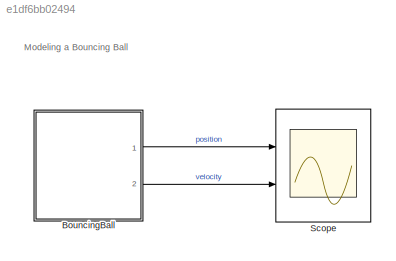
MODEL slx_e1df6bb02494
KIND model
CONFIG AbsTol = auto
CONFIG EnableMultiTasking = on
CONFIG FixedStep = auto
CONFIG MaxStep = .1
CONFIG MinStep = auto
CONFIG RelTol = 1e-6
CONFIG SampleTimeConstraint = Unconstrained
CONFIG Solver = ode15s
CONFIG SolverName = ode15s
CONFIG StartTime = 0.0
CONFIG StopTime = 10
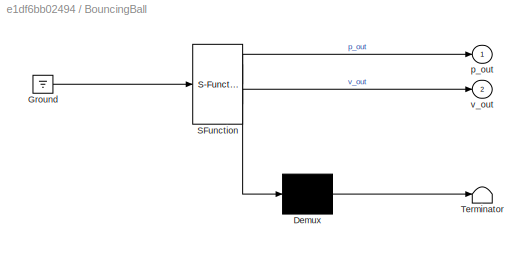
BLOCK [SubSystem] BouncingBall
  ErrorFcn = Stateflow.Translate.translate
  PermitHierarchicalResolution = ExplicitOnly
  Ports = [0, 2]
  RequestExecContextInheritance = off
  SFBlockType = Chart
  TreatAsAtomicUnit = on
  Variant = off
BLOCK [Demux] BouncingBall/ Demux 
  Outputs = 1
  Ports = [1, 1]
BLOCK [Ground] BouncingBall/ Ground 
BLOCK [S-Function] BouncingBall/ SFunction 
  EnableBusSupport = off
  FunctionName = sf_sfun
  PortCounts = [1 3]
  Ports = [1, 3]
  SFcnIsStateOwnerBlock = off
  SFunctionDeploymentMode = off
  Tag = Stateflow S-Function sf_bounce 1
BLOCK [Terminator] BouncingBall/ Terminator 
BLOCK [Outport] BouncingBall/p_out
  IconDisplay = Port number
BLOCK [Outport] BouncingBall/v_out
  IconDisplay = Port number
  Port = 2
BLOCK [Scope] Scope
  NumInputPorts = 2
  Ports = [2]
  ScopeSpecificationString = Simulink.scopes.TimeScopeBlockCfg('CurrentConfiguration', extmgr.ConfigurationSet(extmgr.Configuration('Core','General UI',true,'MessageLogAutoOpenMode','for warn/fail messages','ShowCloseAll',true,'ShowBringAllForward',true),extmgr.Configuration('Core','Source UI',true,'PlaybackToolbar',true),extmgr.Configuration('Sources','WiredSimulink',true,'PointsPerSignal',50000,'DataLoggingLimitDataPoints',...<+2610ch>
ANNOTATION (root): Modeling a Bouncing Ball
LINE BouncingBall:1 -> Scope:1
LINE BouncingBall:2 -> Scope:2
CHART BouncingBall states=1 transitions=2
  STATE_LABEL 'Falling\ndu:\n  % derivatives\n  p_dot = v;\n  v_dot = -9.81;\n  % outputs\n  p_out = p;\n  v_out = v;'
